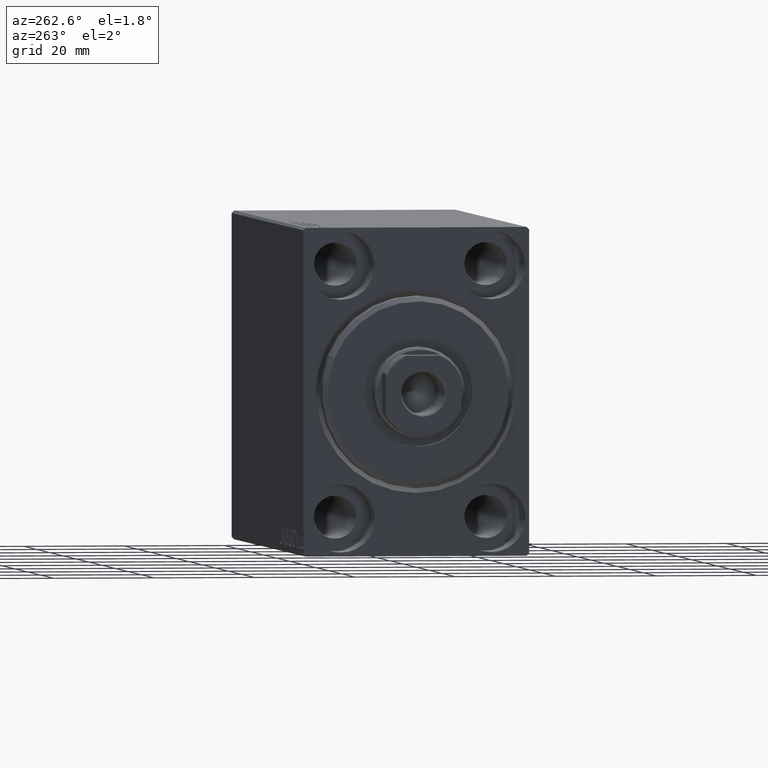
[diagram: clean part render]
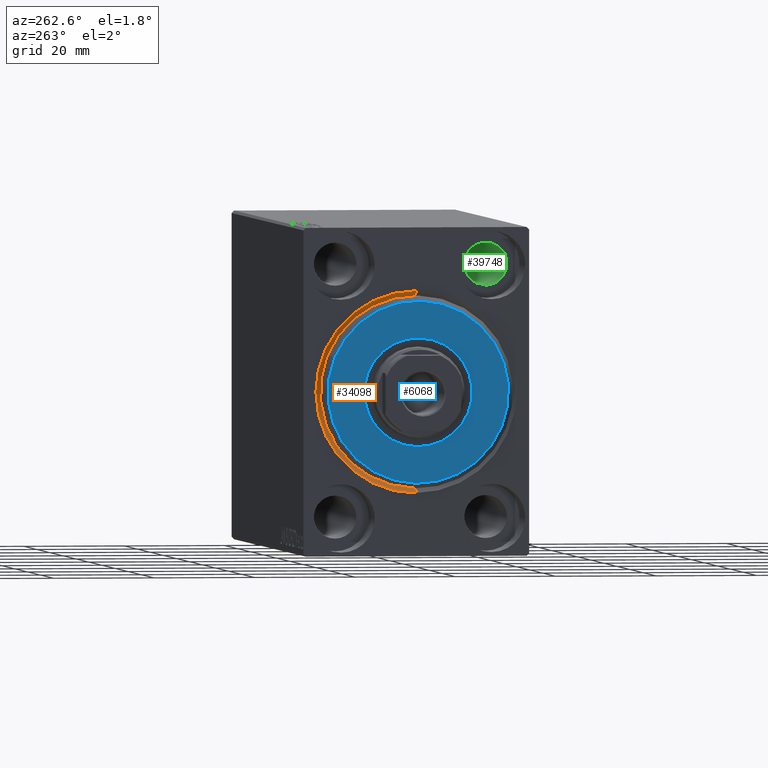
[diagram: same view with three faces highlighted in distinct colors, each labeled with its STEP entity id]
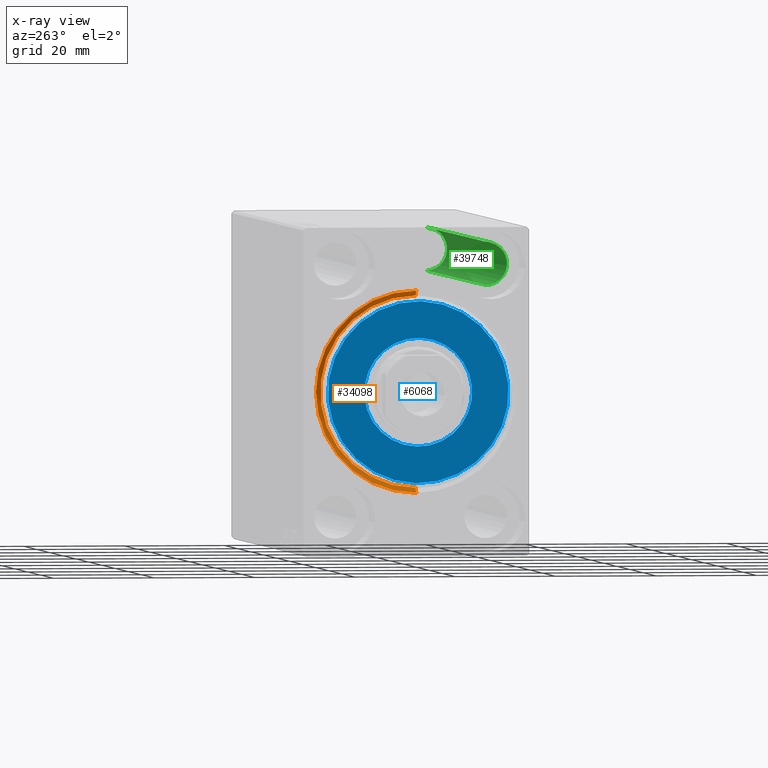
[diagram: x-ray of the same camera — body ghosted, the three highlighted faces saturated]
A machine part, auxiliary view with three faces highlighted in distinct colors.
The next image is the same camera in x-ray (body ghosted, the three faces saturated) — at least one of them is partly hidden behind the body in this view.
Their STEP definitions:

[orange] entity #34098 — the highlighted conical surface has half-angle 45 deg.
#647 = DIRECTION ( 'NONE',  ( 0.000000000000000000, 0.000000000000000000, -1.000000000000000000 ) ) ;
#888 = CARTESIAN_POINT ( 'NONE',  ( 1.000000000000000888, 0.000000000000000000, 19.00000000000000000 ) ) ;
#2673 = CIRCLE ( 'NONE', #13287, 19.00000000000000000 ) ;
#2790 = ORIENTED_EDGE ( 'NONE', *, *, #27770, .F. ) ;
#6482 = VECTOR ( 'NONE', #14989, 1000.000000000000000 ) ;
#9966 = DIRECTION ( 'NONE',  ( -1.000000000000000000, 0.000000000000000000, 0.000000000000000000 ) ) ;
#10065 = DIRECTION ( 'NONE',  ( 1.000000000000000000, 0.000000000000000000, 0.000000000000000000 ) ) ;
#12846 = DIRECTION ( 'NONE',  ( -1.000000000000000000, 0.000000000000000000, 0.000000000000000000 ) ) ;
#12898 = EDGE_CURVE ( 'NONE', #23324, #33015, #21716, .T. ) ;
#13287 = AXIS2_PLACEMENT_3D ( 'NONE', #29669, #12846, #647 ) ;
#13504 = ORIENTED_EDGE ( 'NONE', *, *, #13896, .F. ) ;
#13896 = EDGE_CURVE ( 'NONE', #17818, #33306, #2673, .T. ) ;
#14404 = CONICAL_SURFACE ( 'NONE', #42711, 19.00000000000000000, 0.7853981633974500554 ) ;
#14989 = DIRECTION ( 'NONE',  ( -0.7071067811865463515, 8.659560562354948882E-17, -0.7071067811865487940 ) ) ;
#15283 = CARTESIAN_POINT ( 'NONE',  ( 1.000000000000000888, 2.326828918379970970E-15, -19.00000000000000000 ) ) ;
#15631 = VECTOR ( 'NONE', #27665, 1000.000000000000000 ) ;
#16873 = CARTESIAN_POINT ( 'NONE',  ( 1.000000000000000888, 0.000000000000000000, 19.00000000000000000 ) ) ;
#17051 = LINE ( 'NONE', #888, #15631 ) ;
#17818 = VERTEX_POINT ( 'NONE', #16873 ) ;
#19547 = ORIENTED_EDGE ( 'NONE', *, *, #27291, .T. ) ;
#20232 = DIRECTION ( 'NONE',  ( 0.000000000000000000, 0.000000000000000000, -1.000000000000000000 ) ) ;
#21716 = CIRCLE ( 'NONE', #28094, 20.00000000000000355 ) ;
#22282 = LINE ( 'NONE', #35148, #6482 ) ;
#23324 = VERTEX_POINT ( 'NONE', #28287 ) ;
#23752 = ORIENTED_EDGE ( 'NONE', *, *, #12898, .F. ) ;
#26567 = FACE_OUTER_BOUND ( 'NONE', #37383, .T. ) ;
#27086 = CARTESIAN_POINT ( 'NONE',  ( 0.000000000000000000, 0.000000000000000000, 0.000000000000000000 ) ) ;
#27291 = EDGE_CURVE ( 'NONE', #17818, #33015, #17051, .T. ) ;
#27665 = DIRECTION ( 'NONE',  ( -0.7071067811865463515, 0.000000000000000000, 0.7071067811865487940 ) ) ;
#27770 = EDGE_CURVE ( 'NONE', #33306, #23324, #22282, .T. ) ;
#28094 = AXIS2_PLACEMENT_3D ( 'NONE', #27086, #10065, #20232 ) ;
#28287 = CARTESIAN_POINT ( 'NONE',  ( 0.000000000000000000, 2.449293598294706907E-15, -20.00000000000000355 ) ) ;
#29669 = CARTESIAN_POINT ( 'NONE',  ( 1.000000000000000888, 0.000000000000000000, 0.000000000000000000 ) ) ;
#32378 = CARTESIAN_POINT ( 'NONE',  ( 0.000000000000000000, 0.000000000000000000, 20.00000000000000355 ) ) ;
#33015 = VERTEX_POINT ( 'NONE', #32378 ) ;
#33306 = VERTEX_POINT ( 'NONE', #15283 ) ;
#34098 = ADVANCED_FACE ( 'NONE', ( #26567 ), #14404, .F. ) ;
#35148 = CARTESIAN_POINT ( 'NONE',  ( 1.000000000000000888, 2.326828918379970970E-15, -19.00000000000000000 ) ) ;
#37383 = EDGE_LOOP ( 'NONE', ( #2790, #13504, #19547, #23752 ) ) ;
#40519 = DIRECTION ( 'NONE',  ( 0.000000000000000000, 0.000000000000000000, 1.000000000000000000 ) ) ;
#42711 = AXIS2_PLACEMENT_3D ( 'NONE', #43642, #9966, #40519 ) ;
#43642 = CARTESIAN_POINT ( 'NONE',  ( 1.000000000000000888, 0.000000000000000000, 0.000000000000000000 ) ) ;

[blue] entity #6068 — the highlighted planar face has unit normal (-1, 0, 0).
#501 = CARTESIAN_POINT ( 'NONE',  ( 3.000000000000000000, 0.000000000000000000, 0.000000000000000000 ) ) ;
#4968 = FACE_BOUND ( 'NONE', #27380, .T. ) ;
#5492 = DIRECTION ( 'NONE',  ( 1.000000000000000000, -0.000000000000000000, 0.000000000000000000 ) ) ;
#5687 = CIRCLE ( 'NONE', #30421, 10.75000000000000000 ) ;
#6068 = ADVANCED_FACE ( 'NONE', ( #35297, #4968 ), #18456, .T. ) ;
#6356 = CARTESIAN_POINT ( 'NONE',  ( 3.000000000000000000, 0.000000000000000000, 17.99999999999999645 ) ) ;
#7189 = DIRECTION ( 'NONE',  ( 0.000000000000000000, 0.000000000000000000, -1.000000000000000000 ) ) ;
#7378 = ORIENTED_EDGE ( 'NONE', *, *, #35394, .T. ) ;
#8135 = AXIS2_PLACEMENT_3D ( 'NONE', #39941, #8943, #16439 ) ;
#8943 = DIRECTION ( 'NONE',  ( 1.000000000000000000, -0.000000000000000000, 0.000000000000000000 ) ) ;
#11549 = CARTESIAN_POINT ( 'NONE',  ( 3.000000000000000000, 0.000000000000000000, 10.75000000000000000 ) ) ;
#12032 = ORIENTED_EDGE ( 'NONE', *, *, #18896, .T. ) ;
#12307 = CARTESIAN_POINT ( 'NONE',  ( 3.000000000000000000, 1.316495309083404223E-15, -10.75000000000000000 ) ) ;
#12709 = CIRCLE ( 'NONE', #14124, 17.99999999999999645 ) ;
#14124 = AXIS2_PLACEMENT_3D ( 'NONE', #39143, #5492, #39369 ) ;
#14821 = DIRECTION ( 'NONE',  ( -1.000000000000000000, 0.000000000000000000, -0.000000000000000000 ) ) ;
#15812 = AXIS2_PLACEMENT_3D ( 'NONE', #501, #35630, #17321 ) ;
#16439 = DIRECTION ( 'NONE',  ( 0.000000000000000000, 0.000000000000000000, -1.000000000000000000 ) ) ;
#16715 = CARTESIAN_POINT ( 'NONE',  ( 3.000000000000000000, 0.000000000000000000, 0.000000000000000000 ) ) ;
#17321 = DIRECTION ( 'NONE',  ( 0.000000000000000000, 0.000000000000000000, -1.000000000000000000 ) ) ;
#18425 = VERTEX_POINT ( 'NONE', #34040 ) ;
#18456 = PLANE ( 'NONE',  #8135 ) ;
#18662 = CIRCLE ( 'NONE', #20086, 10.75000000000000000 ) ;
#18749 = EDGE_LOOP ( 'NONE', ( #12032, #39703 ) ) ;
#18896 = EDGE_CURVE ( 'NONE', #30944, #18425, #12709, .T. ) ;
#19261 = VERTEX_POINT ( 'NONE', #11549 ) ;
#20086 = AXIS2_PLACEMENT_3D ( 'NONE', #24791, #14821, #25006 ) ;
#21037 = EDGE_CURVE ( 'NONE', #34696, #19261, #5687, .T. ) ;
#22732 = ORIENTED_EDGE ( 'NONE', *, *, #21037, .T. ) ;
#24791 = CARTESIAN_POINT ( 'NONE',  ( 3.000000000000000000, 0.000000000000000000, 0.000000000000000000 ) ) ;
#25006 = DIRECTION ( 'NONE',  ( 0.000000000000000000, 0.000000000000000000, -1.000000000000000000 ) ) ;
#27380 = EDGE_LOOP ( 'NONE', ( #7378, #22732 ) ) ;
#30421 = AXIS2_PLACEMENT_3D ( 'NONE', #16715, #37526, #7189 ) ;
#30944 = VERTEX_POINT ( 'NONE', #6356 ) ;
#34040 = CARTESIAN_POINT ( 'NONE',  ( 3.000000000000000000, 2.265596578422603002E-15, -17.99999999999999645 ) ) ;
#34696 = VERTEX_POINT ( 'NONE', #12307 ) ;
#34917 = CIRCLE ( 'NONE', #15812, 17.99999999999999645 ) ;
#35297 = FACE_OUTER_BOUND ( 'NONE', #18749, .T. ) ;
#35394 = EDGE_CURVE ( 'NONE', #19261, #34696, #18662, .T. ) ;
#35630 = DIRECTION ( 'NONE',  ( 1.000000000000000000, -0.000000000000000000, 0.000000000000000000 ) ) ;
#37526 = DIRECTION ( 'NONE',  ( -1.000000000000000000, 0.000000000000000000, -0.000000000000000000 ) ) ;
#39143 = CARTESIAN_POINT ( 'NONE',  ( 3.000000000000000000, 0.000000000000000000, 0.000000000000000000 ) ) ;
#39369 = DIRECTION ( 'NONE',  ( 0.000000000000000000, 0.000000000000000000, -1.000000000000000000 ) ) ;
#39703 = ORIENTED_EDGE ( 'NONE', *, *, #40321, .T. ) ;
#39941 = CARTESIAN_POINT ( 'NONE',  ( 3.000000000000000000, 0.000000000000000000, 0.000000000000000000 ) ) ;
#40321 = EDGE_CURVE ( 'NONE', #18425, #30944, #34917, .T. ) ;

[green] entity #39748 — the highlighted cylindrical surface (edge-blend (fillet) strip) has radius 4.25 mm, axis along (-1, -0, -0).
#612 = CARTESIAN_POINT ( 'NONE',  ( 110.0000000000000000, -14.99999999999999645, 25.00000000000000000 ) ) ;
#748 = EDGE_CURVE ( 'NONE', #13941, #24825, #37428, .T. ) ;
#3598 = ORIENTED_EDGE ( 'NONE', *, *, #748, .T. ) ;
#4447 = CARTESIAN_POINT ( 'NONE',  ( 101.0000000000000000, -14.99999999999999645, 29.25000000000000000 ) ) ;
#5590 = DIRECTION ( 'NONE',  ( 0.000000000000000000, 0.000000000000000000, 1.000000000000000000 ) ) ;
#5734 = CYLINDRICAL_SURFACE ( 'NONE', #26438, 4.249999999999996447 ) ;
#6611 = DIRECTION ( 'NONE',  ( -1.000000000000000000, -0.000000000000000000, -0.000000000000000000 ) ) ;
#7782 = DIRECTION ( 'NONE',  ( 0.000000000000000000, 0.000000000000000000, -1.000000000000000000 ) ) ;
#7843 = VERTEX_POINT ( 'NONE', #4447 ) ;
#9204 = ORIENTED_EDGE ( 'NONE', *, *, #15980, .F. ) ;
#10639 = DIRECTION ( 'NONE',  ( -1.000000000000000000, -0.000000000000000000, -0.000000000000000000 ) ) ;
#10842 = CARTESIAN_POINT ( 'NONE',  ( 101.0000000000000000, -14.99999999999999645, 20.75000000000000355 ) ) ;
#11297 = AXIS2_PLACEMENT_3D ( 'NONE', #21972, #35490, #5590 ) ;
#13941 = VERTEX_POINT ( 'NONE', #10842 ) ;
#15513 = CIRCLE ( 'NONE', #11297, 4.249999999999996447 ) ;
#15980 = EDGE_CURVE ( 'NONE', #13941, #7843, #31722, .T. ) ;
#20581 = CARTESIAN_POINT ( 'NONE',  ( 110.0000000000000000, -14.99999999999999645, 20.75000000000000355 ) ) ;
#21047 = DIRECTION ( 'NONE',  ( -1.000000000000000000, -0.000000000000000000, -0.000000000000000000 ) ) ;
#21291 = EDGE_CURVE ( 'NONE', #7843, #29153, #24837, .T. ) ;
#21851 = VECTOR ( 'NONE', #42132, 1000.000000000000000 ) ;
#21860 = ORIENTED_EDGE ( 'NONE', *, *, #21291, .F. ) ;
#21972 = CARTESIAN_POINT ( 'NONE',  ( 8.999999999999994671, -14.99999999999999645, 25.00000000000000000 ) ) ;
#22834 = EDGE_CURVE ( 'NONE', #24825, #29153, #15513, .T. ) ;
#24825 = VERTEX_POINT ( 'NONE', #32723 ) ;
#24837 = LINE ( 'NONE', #35033, #21851 ) ;
#26438 = AXIS2_PLACEMENT_3D ( 'NONE', #612, #6611, #27397 ) ;
#27397 = DIRECTION ( 'NONE',  ( 0.000000000000000000, 0.000000000000000000, 1.000000000000000000 ) ) ;
#29153 = VERTEX_POINT ( 'NONE', #38814 ) ;
#31722 = CIRCLE ( 'NONE', #39518, 4.249999999999996447 ) ;
#32723 = CARTESIAN_POINT ( 'NONE',  ( 8.999999999999994671, -14.99999999999999645, 20.75000000000000355 ) ) ;
#34871 = VECTOR ( 'NONE', #10639, 1000.000000000000000 ) ;
#35033 = CARTESIAN_POINT ( 'NONE',  ( 110.0000000000000000, -14.99999999999999645, 29.25000000000000000 ) ) ;
#35490 = DIRECTION ( 'NONE',  ( -1.000000000000000000, 0.000000000000000000, 0.000000000000000000 ) ) ;
#36065 = FACE_OUTER_BOUND ( 'NONE', #38020, .T. ) ;
#37428 = LINE ( 'NONE', #20581, #34871 ) ;
#38020 = EDGE_LOOP ( 'NONE', ( #9204, #3598, #42477, #21860 ) ) ;
#38326 = CARTESIAN_POINT ( 'NONE',  ( 101.0000000000000000, -14.99999999999999645, 25.00000000000000000 ) ) ;
#38814 = CARTESIAN_POINT ( 'NONE',  ( 8.999999999999994671, -14.99999999999999645, 29.25000000000000000 ) ) ;
#39518 = AXIS2_PLACEMENT_3D ( 'NONE', #38326, #21047, #7782 ) ;
#39748 = ADVANCED_FACE ( 'NONE', ( #36065 ), #5734, .F. ) ;
#42132 = DIRECTION ( 'NONE',  ( -1.000000000000000000, -0.000000000000000000, -0.000000000000000000 ) ) ;
#42477 = ORIENTED_EDGE ( 'NONE', *, *, #22834, .T. ) ;